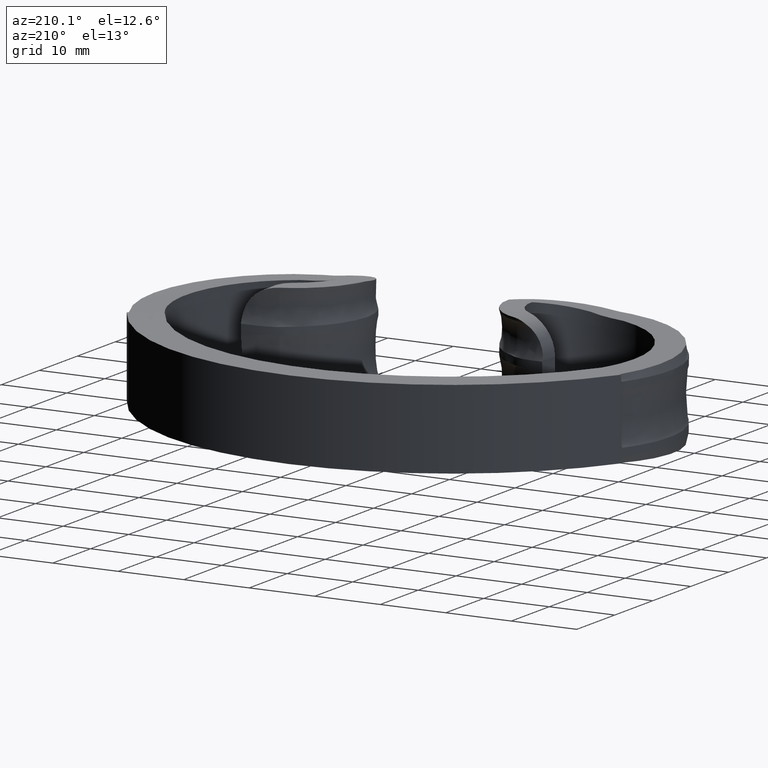
[diagram: clean part render]
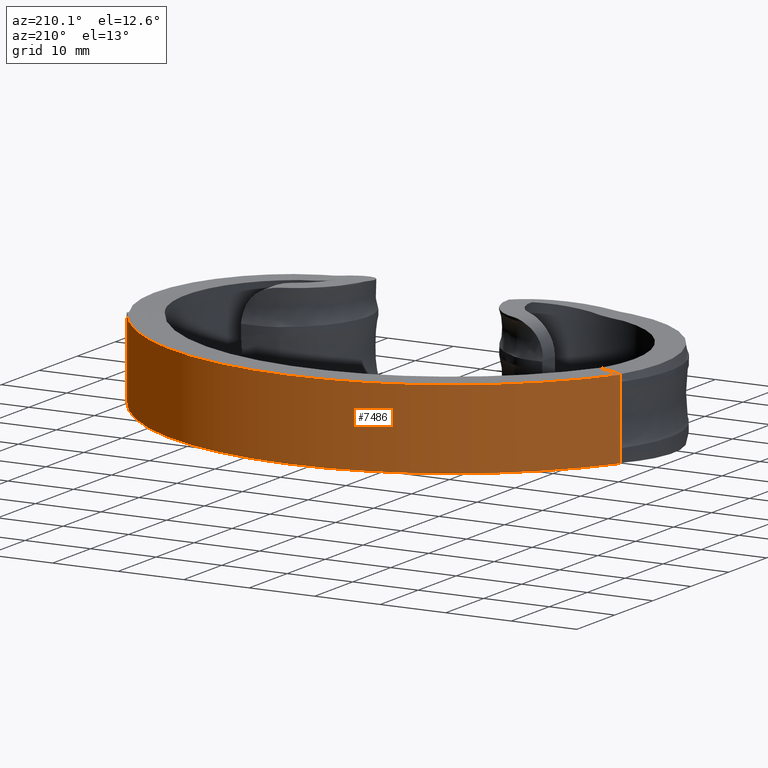
[diagram: same view with one face highlighted and labeled with its STEP entity id]
A machine part, auxiliary view. The second image highlights one B-rep face of the part: STEP entity #7486.
In plain terms, the highlighted cylindrical surface (partial cylindrical patch) has radius 43 mm, axis along (0, 0, 1).
Its self-contained STEP definition (entity closure, byte-faithful):
#284 = EDGE_CURVE ( 'NONE', #14880, #8026, #7058, .T. ) ;
#404 = CARTESIAN_POINT ( 'NONE',  ( -6.309924276795900825E-27, -17.99999999999999645, 6.000000000000000000 ) ) ;
#444 = ORIENTED_EDGE ( 'NONE', *, *, #14665, .F. ) ;
#450 = VERTEX_POINT ( 'NONE', #9655 ) ;
#523 = B_SPLINE_CURVE_WITH_KNOTS ( 'NONE', 3,
 ( #7974, #7912, #3586, #924 ),
 .UNSPECIFIED., .F., .F.,
 ( 4, 4 ),
 ( 0.000000000000000000, 0.0002072567222575421946 ),
 .UNSPECIFIED. ) ;
#552 = VECTOR ( 'NONE', #14463, 1000.000000000000000 ) ;
#604 = ORIENTED_EDGE ( 'NONE', *, *, #1586, .F. ) ;
#669 = CARTESIAN_POINT ( 'NONE',  ( -37.69169187653044162, 2.696288642548607228, 2.246012162489597230 ) ) ;
#924 = CARTESIAN_POINT ( 'NONE',  ( -37.69202677324584272, 2.695678721049922899, -5.578288710257702121 ) ) ;
#947 = CARTESIAN_POINT ( 'NONE',  ( -37.69002071778237450, 2.699331832045595014, -1.519489627522414787 ) ) ;
#956 = DIRECTION ( 'NONE',  ( 0.000000000000000000, 0.000000000000000000, 1.000000000000000000 ) ) ;
#1019 = ORIENTED_EDGE ( 'NONE', *, *, #6006, .T. ) ;
#1151 = CARTESIAN_POINT ( 'NONE',  ( 37.69202677324584272, 2.695678721049922899, -2.299056126660615096 ) ) ;
#1201 = CARTESIAN_POINT ( 'NONE',  ( -37.69002071778237450, 2.699331832045595014, 0.000000000000000000 ) ) ;
#1586 = EDGE_CURVE ( 'NONE', #7216, #13652, #12144, .T. ) ;
#1819 = VECTOR ( 'NONE', #15344, 1000.000000000000000 ) ;
#1828 = B_SPLINE_CURVE_WITH_KNOTS ( 'NONE', 3,
 ( #12345, #3737, #5032, #15044, #9292, #6559, #947 ),
 .UNSPECIFIED., .F., .F.,
 ( 4, 3, 4 ),
 ( 8.673617379884035472E-19, 0.0007000214772208469306, 0.0007795776664231896837 ),
 .UNSPECIFIED. ) ;
#2290 = VECTOR ( 'NONE', #11595, 1000.000000000000000 ) ;
#2293 = VECTOR ( 'NONE', #17463, 1000.000000000000000 ) ;
#2378 = VECTOR ( 'NONE', #7789, 1000.000000000000000 ) ;
#2581 = CARTESIAN_POINT ( 'NONE',  ( 37.69010867774257179, 2.699171671459046795, -1.832387341670425496 ) ) ;
#2625 = ORIENTED_EDGE ( 'NONE', *, *, #17266, .F. ) ;
#2672 = CARTESIAN_POINT ( 'NONE',  ( -37.69051131293480239, 2.698438754745246193, 5.647302492510616112 ) ) ;
#3045 = VERTEX_POINT ( 'NONE', #13651 ) ;
#3059 = ORIENTED_EDGE ( 'NONE', *, *, #15524, .T. ) ;
#3211 = VERTEX_POINT ( 'NONE', #13674 ) ;
#3345 = VECTOR ( 'NONE', #16552, 1000.000000000000000 ) ;
#3385 = EDGE_CURVE ( 'NONE', #450, #8007, #4319, .T. ) ;
#3402 = LINE ( 'NONE', #9657, #5848 ) ;
#3572 = CARTESIAN_POINT ( 'NONE',  ( 37.69202677324584272, 2.695678721049922899, -2.299056126660615096 ) ) ;
#3586 = CARTESIAN_POINT ( 'NONE',  ( -37.69051131293479528, 2.698438754745250634, -5.647302492510361205 ) ) ;
#3610 = CARTESIAN_POINT ( 'NONE',  ( 37.69202677324584272, 2.695678721049922899, -5.578288710257702121 ) ) ;
#3737 = CARTESIAN_POINT ( 'NONE',  ( -37.69048262199328292, 2.698491008152847925, -2.065737691823421596 ) ) ;
#3776 = CARTESIAN_POINT ( 'NONE',  ( -37.69202677324584272, 2.695678721049922899, 6.000000000000000000 ) ) ;
#3806 = CARTESIAN_POINT ( 'NONE',  ( 37.69002071778237450, 2.699331832045595014, 5.785503524985148083 ) ) ;
#3864 = LINE ( 'NONE', #16644, #11657 ) ;
#4122 = CARTESIAN_POINT ( 'NONE',  ( 37.69003320876854701, 2.699309088032954218, -1.599046901930896825 ) ) ;
#4154 = CARTESIAN_POINT ( 'NONE',  ( -37.69002071778236740, 2.699331832045591018, 5.716417950899357336 ) ) ;
#4201 = DIRECTION ( 'NONE',  ( 0.000000000000000000, 0.000000000000000000, 1.000000000000000000 ) ) ;
#4202 = ORIENTED_EDGE ( 'NONE', *, *, #3385, .F. ) ;
#4319 = CIRCLE ( 'NONE', #9024, 43.00000000000000000 ) ;
#4636 = DIRECTION ( 'NONE',  ( 0.000000000000000000, 0.000000000000000000, 1.000000000000000000 ) ) ;
#4816 = CARTESIAN_POINT ( 'NONE',  ( -37.69026941354967875, 2.698879162317250113, 1.986168991981942300 ) ) ;
#4868 = EDGE_CURVE ( 'NONE', #3211, #14474, #12212, .T. ) ;
#4870 = VERTEX_POINT ( 'NONE', #7078 ) ;
#4880 = CARTESIAN_POINT ( 'NONE',  ( -37.69154668385861839, 2.696553060316748684, 2.219489627497191364 ) ) ;
#4959 = CARTESIAN_POINT ( 'NONE',  ( 37.69202677324584272, 2.695678721049922899, 6.000000000000000000 ) ) ;
#5032 = CARTESIAN_POINT ( 'NONE',  ( -37.69010867774257179, 2.699171671459046795, -1.832387341670425496 ) ) ;
#5044 = ORIENTED_EDGE ( 'NONE', *, *, #14174, .T. ) ;
#5062 = CARTESIAN_POINT ( 'NONE',  ( -37.69002071778237450, 2.699331832045595014, -1.519489627522414787 ) ) ;
#5464 = CARTESIAN_POINT ( 'NONE',  ( 37.69002071778237450, 2.699331832045595014, 1.519489627497191409 ) ) ;
#5533 = CARTESIAN_POINT ( 'NONE',  ( 37.69002071778237450, 2.699331832045595014, 0.000000000000000000 ) ) ;
#5543 = CARTESIAN_POINT ( 'NONE',  ( 37.69002071778237450, 2.699331832045595014, -1.519489627522414787 ) ) ;
#5569 = AXIS2_PLACEMENT_3D ( 'NONE', #16124, #4636, #6152 ) ;
#5786 = LINE ( 'NONE', #3776, #3345 ) ;
#5848 = VECTOR ( 'NONE', #12389, 1000.000000000000000 ) ;
#6006 = EDGE_CURVE ( 'NONE', #11268, #11892, #17836, .T. ) ;
#6152 = DIRECTION ( 'NONE',  ( 1.000000000000000000, 0.000000000000000000, 0.000000000000000000 ) ) ;
#6176 = VERTEX_POINT ( 'NONE', #10055 ) ;
#6269 = CARTESIAN_POINT ( 'NONE',  ( -37.69185124668345566, 2.695998398987435429, 2.272534383550014692 ) ) ;
#6328 = B_SPLINE_CURVE_WITH_KNOTS ( 'NONE', 3,
 ( #12698, #2672, #4154, #14113 ),
 .UNSPECIFIED., .F., .F.,
 ( 4, 4 ),
 ( 0.000000000000000000, 0.0002072567222573732759 ),
 .UNSPECIFIED. ) ;
#6359 = EDGE_CURVE ( 'NONE', #4870, #14880, #6456, .T. ) ;
#6384 = CARTESIAN_POINT ( 'NONE',  ( -37.69002071778236740, 2.699331832045591462, 6.000000000000000000 ) ) ;
#6456 = B_SPLINE_CURVE_WITH_KNOTS ( 'NONE', 3,
 ( #14925, #16328, #10732, #8256 ),
 .UNSPECIFIED., .F., .F.,
 ( 4, 4 ),
 ( 0.000000000000000000, 0.0002072567222575421946 ),
 .UNSPECIFIED. ) ;
#6484 = EDGE_CURVE ( 'NONE', #15269, #7216, #3864, .T. ) ;
#6559 = CARTESIAN_POINT ( 'NONE',  ( -37.69002071778236740, 2.699331832045592350, -1.546008720402453962 ) ) ;
#6592 = ORIENTED_EDGE ( 'NONE', *, *, #284, .F. ) ;
#6598 = CARTESIAN_POINT ( 'NONE',  ( -37.69202677324584272, 2.695678721049922899, -2.299056126660615096 ) ) ;
#7058 = LINE ( 'NONE', #4959, #2378 ) ;
#7078 = CARTESIAN_POINT ( 'NONE',  ( 37.69002071778237450, 2.699331832045595014, -5.785503524985005974 ) ) ;
#7150 = ORIENTED_EDGE ( 'NONE', *, *, #13043, .F. ) ;
#7193 = EDGE_CURVE ( 'NONE', #8919, #7572, #6328, .T. ) ;
#7216 = VERTEX_POINT ( 'NONE', #9840 ) ;
#7236 = ORIENTED_EDGE ( 'NONE', *, *, #14899, .T. ) ;
#7486 = ADVANCED_FACE ( 'NONE', ( #10990 ), #12780, .T. ) ;
#7572 = VERTEX_POINT ( 'NONE', #13441 ) ;
#7695 = LINE ( 'NONE', #8899, #552 ) ;
#7789 = DIRECTION ( 'NONE',  ( 0.000000000000000000, 0.000000000000000000, 1.000000000000000000 ) ) ;
#7819 = ORIENTED_EDGE ( 'NONE', *, *, #7193, .T. ) ;
#7912 = CARTESIAN_POINT ( 'NONE',  ( -37.69002071778237450, 2.699331832045594570, -5.716417950899158384 ) ) ;
#7945 = CARTESIAN_POINT ( 'NONE',  ( 37.69002071778236740, 2.699331832045591018, 5.716417950899357336 ) ) ;
#7974 = CARTESIAN_POINT ( 'NONE',  ( -37.69002071778237450, 2.699331832045595014, -5.785503524985005974 ) ) ;
#8007 = VERTEX_POINT ( 'NONE', #6384 ) ;
#8026 = VERTEX_POINT ( 'NONE', #3572 ) ;
#8238 = VERTEX_POINT ( 'NONE', #15779 ) ;
#8256 = CARTESIAN_POINT ( 'NONE',  ( 37.69202677324584272, 2.695678721049922899, -5.578288710257702121 ) ) ;
#8297 = EDGE_CURVE ( 'NONE', #12140, #11268, #15169, .T. ) ;
#8368 = CARTESIAN_POINT ( 'NONE',  ( 37.69026941354967875, 2.698879162317250113, 1.986168991981942300 ) ) ;
#8504 = CARTESIAN_POINT ( 'NONE',  ( -37.69002071778237450, 2.699331832045595014, -5.785503524985005974 ) ) ;
#8520 = CARTESIAN_POINT ( 'NONE',  ( -37.69002071778237450, 2.699331832045595014, 0.000000000000000000 ) ) ;
#8548 = CARTESIAN_POINT ( 'NONE',  ( 37.69202677324584272, 2.695678721049922899, 2.299056126640045772 ) ) ;
#8853 = CARTESIAN_POINT ( 'NONE',  ( 37.69002071778237450, 2.699331832045595014, 5.785503524985148083 ) ) ;
#8899 = CARTESIAN_POINT ( 'NONE',  ( 37.69002071778237450, 2.699331832045595014, 0.000000000000000000 ) ) ;
#8919 = VERTEX_POINT ( 'NONE', #17851 ) ;
#9024 = AXIS2_PLACEMENT_3D ( 'NONE', #404, #14809, #11858 ) ;
#9133 = CARTESIAN_POINT ( 'NONE',  ( -37.69002071778236740, 2.699331832045591018, 1.752825353709870804 ) ) ;
#9292 = CARTESIAN_POINT ( 'NONE',  ( -37.69002463173714546, 2.699324705394729573, -1.572527815036497634 ) ) ;
#9410 = LINE ( 'NONE', #1201, #1819 ) ;
#9553 = ORIENTED_EDGE ( 'NONE', *, *, #4868, .T. ) ;
#9655 = CARTESIAN_POINT ( 'NONE',  ( 37.69002071778236740, 2.699331832045591462, 6.000000000000000000 ) ) ;
#9657 = CARTESIAN_POINT ( 'NONE',  ( 37.69002071778237450, 2.699331832045595014, 0.000000000000000000 ) ) ;
#9840 = CARTESIAN_POINT ( 'NONE',  ( 37.69202677324584272, 2.695678721049922899, 5.578288710258013872 ) ) ;
#10055 = CARTESIAN_POINT ( 'NONE',  ( 37.69002071778237450, 2.699331832045595014, 1.519489627497191409 ) ) ;
#10187 = EDGE_CURVE ( 'NONE', #7572, #8007, #9410, .T. ) ;
#10358 = B_SPLINE_CURVE_WITH_KNOTS ( 'NONE', 3,
 ( #1151, #11105, #2581, #4122, #15422, #14071, #5543 ),
 .UNSPECIFIED., .F., .F.,
 ( 4, 3, 4 ),
 ( 8.673617379884035472E-19, 0.0007000214772208469306, 0.0007795776664231896837 ),
 .UNSPECIFIED. ) ;
#10732 = CARTESIAN_POINT ( 'NONE',  ( 37.69051131293479528, 2.698438754745250634, -5.647302492510361205 ) ) ;
#10990 = FACE_OUTER_BOUND ( 'NONE', #17091, .T. ) ;
#11105 = CARTESIAN_POINT ( 'NONE',  ( 37.69048262199328292, 2.698491008152847925, -2.065737691823421596 ) ) ;
#11268 = VERTEX_POINT ( 'NONE', #16586 ) ;
#11392 = CARTESIAN_POINT ( 'NONE',  ( 37.69169187653044162, 2.696288642548607228, 2.246012162489597230 ) ) ;
#11444 = ORIENTED_EDGE ( 'NONE', *, *, #8297, .T. ) ;
#11595 = DIRECTION ( 'NONE',  ( 0.000000000000000000, 0.000000000000000000, 1.000000000000000000 ) ) ;
#11657 = VECTOR ( 'NONE', #956, 1000.000000000000000 ) ;
#11725 = B_SPLINE_CURVE_WITH_KNOTS ( 'NONE', 3,
 ( #5464, #16807, #8368, #14054, #11392, #15580, #18301 ),
 .UNSPECIFIED., .F., .F.,
 ( 4, 3, 4 ),
 ( 0.000000000000000000, 0.0007000071786380384926, 0.0007795781198658281556 ),
 .UNSPECIFIED. ) ;
#11802 = VERTEX_POINT ( 'NONE', #6598 ) ;
#11809 = EDGE_CURVE ( 'NONE', #8238, #11802, #5786, .T. ) ;
#11858 = DIRECTION ( 'NONE',  ( 1.467424250417651256E-28, 1.000000000000000000, 0.000000000000000000 ) ) ;
#11892 = VERTEX_POINT ( 'NONE', #14454 ) ;
#12120 = ORIENTED_EDGE ( 'NONE', *, *, #10187, .T. ) ;
#12140 = VERTEX_POINT ( 'NONE', #5062 ) ;
#12144 = B_SPLINE_CURVE_WITH_KNOTS ( 'NONE', 3,
 ( #12353, #13894, #7945, #3806 ),
 .UNSPECIFIED., .F., .F.,
 ( 4, 4 ),
 ( 0.000000000000000000, 0.0002072567222573732759 ),
 .UNSPECIFIED. ) ;
#12212 = LINE ( 'NONE', #8520, #13761 ) ;
#12345 = CARTESIAN_POINT ( 'NONE',  ( -37.69202677324584272, 2.695678721049922899, -2.299056126660615096 ) ) ;
#12353 = CARTESIAN_POINT ( 'NONE',  ( 37.69202677324584272, 2.695678721049922899, 5.578288710258013872 ) ) ;
#12389 = DIRECTION ( 'NONE',  ( 0.000000000000000000, 0.000000000000000000, 1.000000000000000000 ) ) ;
#12698 = CARTESIAN_POINT ( 'NONE',  ( -37.69202677324584272, 2.695678721049922899, 5.578288710258013872 ) ) ;
#12780 = CYLINDRICAL_SURFACE ( 'NONE', #5569, 43.00000000000000000 ) ;
#13043 = EDGE_CURVE ( 'NONE', #13652, #450, #13364, .T. ) ;
#13091 = VERTEX_POINT ( 'NONE', #13268 ) ;
#13158 = DIRECTION ( 'NONE',  ( 1.467424250417651256E-28, 1.000000000000000000, 0.000000000000000000 ) ) ;
#13211 = ORIENTED_EDGE ( 'NONE', *, *, #6484, .F. ) ;
#13268 = CARTESIAN_POINT ( 'NONE',  ( 37.69002071778237450, 2.699331832045595014, -1.519489627522414787 ) ) ;
#13303 = CARTESIAN_POINT ( 'NONE',  ( -37.69202677324584272, 2.695678721049922899, 6.000000000000000000 ) ) ;
#13364 = LINE ( 'NONE', #5533, #13588 ) ;
#13370 = CARTESIAN_POINT ( 'NONE',  ( -37.69202677324584272, 2.695678721049922899, 2.299056126640045772 ) ) ;
#13441 = CARTESIAN_POINT ( 'NONE',  ( -37.69002071778237450, 2.699331832045595014, 5.785503524985148083 ) ) ;
#13588 = VECTOR ( 'NONE', #18252, 1000.000000000000000 ) ;
#13651 = CARTESIAN_POINT ( 'NONE',  ( 37.69002071778236740, 2.699331832045591462, -6.000000000000000000 ) ) ;
#13652 = VERTEX_POINT ( 'NONE', #8853 ) ;
#13674 = CARTESIAN_POINT ( 'NONE',  ( -37.69002071778236740, 2.699331832045591462, -6.000000000000000000 ) ) ;
#13761 = VECTOR ( 'NONE', #4201, 1000.000000000000000 ) ;
#13894 = CARTESIAN_POINT ( 'NONE',  ( 37.69051131293480239, 2.698438754745246193, 5.647302492510616112 ) ) ;
#14030 = EDGE_CURVE ( 'NONE', #3045, #4870, #7695, .T. ) ;
#14054 = CARTESIAN_POINT ( 'NONE',  ( 37.69154668385861839, 2.696553060316748684, 2.219489627497191364 ) ) ;
#14071 = CARTESIAN_POINT ( 'NONE',  ( 37.69002071778236740, 2.699331832045592350, -1.546008720402453962 ) ) ;
#14113 = CARTESIAN_POINT ( 'NONE',  ( -37.69002071778237450, 2.699331832045595014, 5.785503524985148083 ) ) ;
#14174 = EDGE_CURVE ( 'NONE', #14474, #8238, #523, .T. ) ;
#14303 = CIRCLE ( 'NONE', #15469, 43.00000000000000000 ) ;
#14454 = CARTESIAN_POINT ( 'NONE',  ( -37.69202677324584272, 2.695678721049922899, 2.299056126640045772 ) ) ;
#14463 = DIRECTION ( 'NONE',  ( 0.000000000000000000, 0.000000000000000000, 1.000000000000000000 ) ) ;
#14474 = VERTEX_POINT ( 'NONE', #8504 ) ;
#14499 = LINE ( 'NONE', #13303, #2293 ) ;
#14665 = EDGE_CURVE ( 'NONE', #6176, #15269, #11725, .T. ) ;
#14702 = CARTESIAN_POINT ( 'NONE',  ( -37.69002071778237450, 2.699331832045595014, 1.519489627497191409 ) ) ;
#14738 = DIRECTION ( 'NONE',  ( 0.000000000000000000, 0.000000000000000000, 1.000000000000000000 ) ) ;
#14809 = DIRECTION ( 'NONE',  ( 0.000000000000000000, 0.000000000000000000, 1.000000000000000000 ) ) ;
#14880 = VERTEX_POINT ( 'NONE', #3610 ) ;
#14899 = EDGE_CURVE ( 'NONE', #11802, #12140, #1828, .T. ) ;
#14925 = CARTESIAN_POINT ( 'NONE',  ( 37.69002071778237450, 2.699331832045595014, -5.785503524985005974 ) ) ;
#15044 = CARTESIAN_POINT ( 'NONE',  ( -37.69003320876854701, 2.699309088032954218, -1.599046901930896825 ) ) ;
#15169 = LINE ( 'NONE', #17206, #2290 ) ;
#15269 = VERTEX_POINT ( 'NONE', #8548 ) ;
#15294 = ORIENTED_EDGE ( 'NONE', *, *, #14030, .F. ) ;
#15344 = DIRECTION ( 'NONE',  ( 0.000000000000000000, 0.000000000000000000, 1.000000000000000000 ) ) ;
#15395 = ORIENTED_EDGE ( 'NONE', *, *, #6359, .F. ) ;
#15422 = CARTESIAN_POINT ( 'NONE',  ( 37.69002463173714546, 2.699324705394729573, -1.572527815036497634 ) ) ;
#15469 = AXIS2_PLACEMENT_3D ( 'NONE', #16021, #14738, #13158 ) ;
#15524 = EDGE_CURVE ( 'NONE', #11892, #8919, #14499, .T. ) ;
#15580 = CARTESIAN_POINT ( 'NONE',  ( 37.69185124668345566, 2.695998398987435429, 2.272534383550014692 ) ) ;
#15754 = EDGE_CURVE ( 'NONE', #3045, #3211, #14303, .T. ) ;
#15779 = CARTESIAN_POINT ( 'NONE',  ( -37.69202677324584272, 2.695678721049922899, -5.578288710257702121 ) ) ;
#16021 = CARTESIAN_POINT ( 'NONE',  ( -6.309924276795900825E-27, -17.99999999999999645, -6.000000000000000000 ) ) ;
#16124 = CARTESIAN_POINT ( 'NONE',  ( -6.309924276795900825E-27, -17.99999999999999645, 0.000000000000000000 ) ) ;
#16328 = CARTESIAN_POINT ( 'NONE',  ( 37.69002071778237450, 2.699331832045594570, -5.716417950899158384 ) ) ;
#16552 = DIRECTION ( 'NONE',  ( 0.000000000000000000, 0.000000000000000000, 1.000000000000000000 ) ) ;
#16586 = CARTESIAN_POINT ( 'NONE',  ( -37.69002071778237450, 2.699331832045595014, 1.519489627497191409 ) ) ;
#16644 = CARTESIAN_POINT ( 'NONE',  ( 37.69202677324584272, 2.695678721049922899, 6.000000000000000000 ) ) ;
#16708 = ORIENTED_EDGE ( 'NONE', *, *, #15754, .T. ) ;
#16807 = CARTESIAN_POINT ( 'NONE',  ( 37.69002071778236740, 2.699331832045591018, 1.752825353709870804 ) ) ;
#17091 = EDGE_LOOP ( 'NONE', ( #3059, #7819, #12120, #4202, #7150, #604, #13211, #444, #2625, #17321, #6592, #15395, #15294, #16708, #9553, #5044, #17582, #7236, #11444, #1019 ) ) ;
#17206 = CARTESIAN_POINT ( 'NONE',  ( -37.69002071778237450, 2.699331832045595014, 0.000000000000000000 ) ) ;
#17266 = EDGE_CURVE ( 'NONE', #13091, #6176, #3402, .T. ) ;
#17321 = ORIENTED_EDGE ( 'NONE', *, *, #17986, .F. ) ;
#17463 = DIRECTION ( 'NONE',  ( 0.000000000000000000, 0.000000000000000000, 1.000000000000000000 ) ) ;
#17582 = ORIENTED_EDGE ( 'NONE', *, *, #11809, .T. ) ;
#17836 = B_SPLINE_CURVE_WITH_KNOTS ( 'NONE', 3,
 ( #14702, #9133, #4816, #4880, #669, #6269, #13370 ),
 .UNSPECIFIED., .F., .F.,
 ( 4, 3, 4 ),
 ( 0.000000000000000000, 0.0007000071786380384926, 0.0007795781198658281556 ),
 .UNSPECIFIED. ) ;
#17851 = CARTESIAN_POINT ( 'NONE',  ( -37.69202677324584272, 2.695678721049922899, 5.578288710258013872 ) ) ;
#17986 = EDGE_CURVE ( 'NONE', #8026, #13091, #10358, .T. ) ;
#18252 = DIRECTION ( 'NONE',  ( 0.000000000000000000, 0.000000000000000000, 1.000000000000000000 ) ) ;
#18301 = CARTESIAN_POINT ( 'NONE',  ( 37.69202677324584272, 2.695678721049922899, 2.299056126640045772 ) ) ;